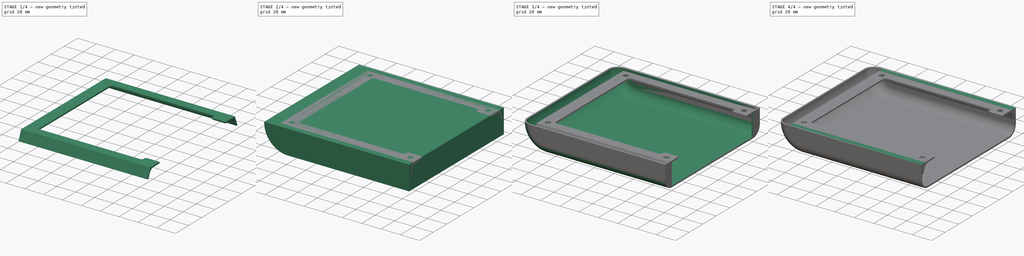
[diagram: build sequence overview — one tinted view per stage of 4, left to right]
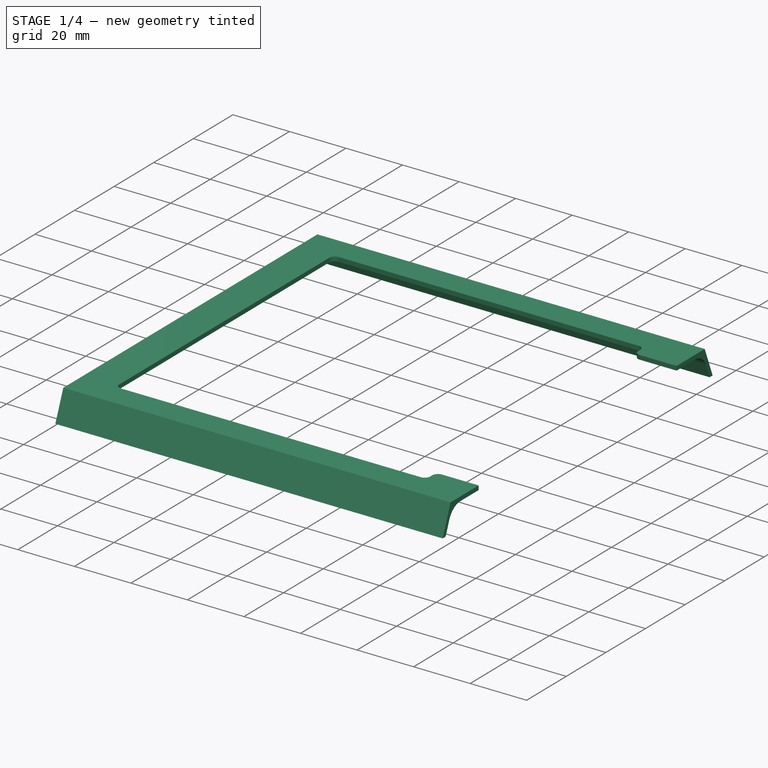
[diagram: stage 1 of 4 — iso view after this stage's code; geometry added in this stage tinted green]
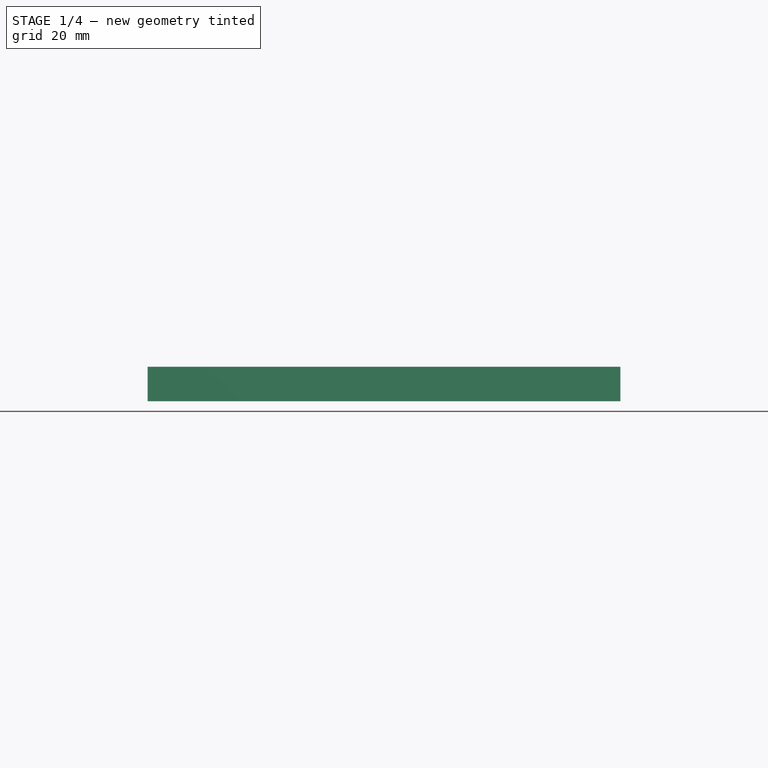
[diagram: stage 1 of 4 — front view after this stage's code; geometry added in this stage tinted green]
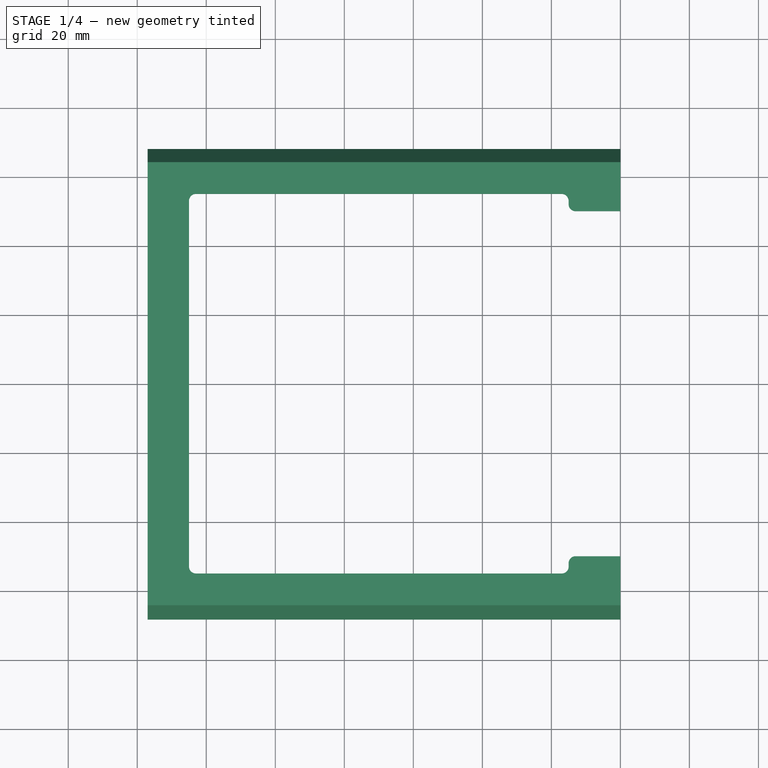
[diagram: stage 1 of 4 — top view after this stage's code; geometry added in this stage tinted green]
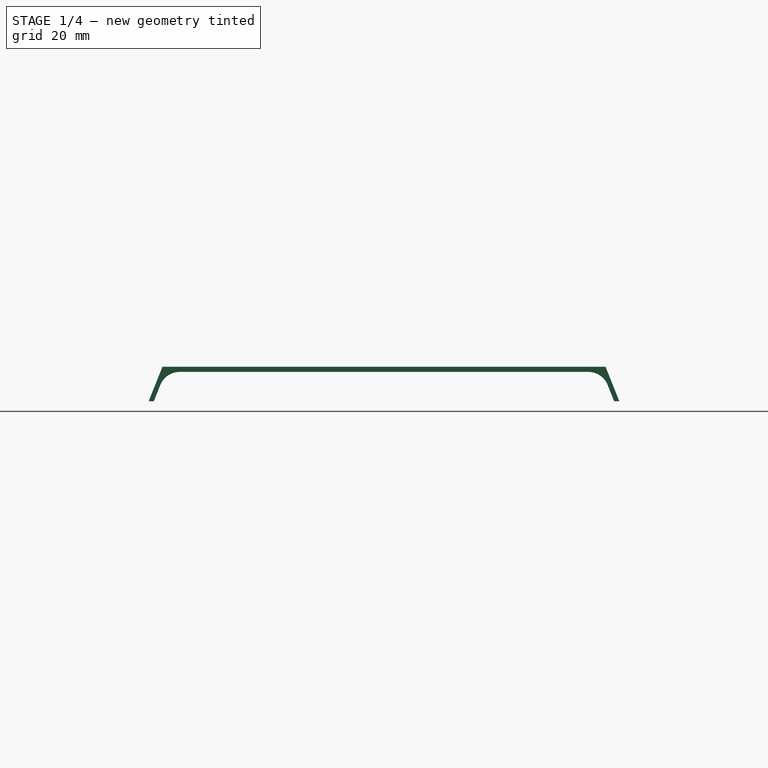
[diagram: stage 1 of 4 — right view after this stage's code; geometry added in this stage tinted green]
FCSTD DOCUMENT  (FreeCAD 1.1R)
Label: cover-mount
License: All rights reserved
LicenseURL: https://en.wikipedia.org/wiki/All_rights_reserved
objects: Sketcher::SketchObject×8, PartDesign::Pocket×5, PartDesign::Pad×3, App::Point×2, PartDesign::Body×2, PartDesign::Fillet×1, PartDesign::Thickness×1
note: 48 computed .brp shape members not serialized (recipe doc carries the construction recipe); baked Part::Feature solids carry a one-line shape summary decoded from their .brp

FEATURE [PartDesign::Body] Body  label="case"
  AllowCompound = false
  Group = -> [Sketch,Pad,Fillet,Thickness,Sketch001,Pocket,Sketch002,Pocket001,Sketch004,Pad001]
  Origin = -> Origin
  Tip = -> Pad001
FEATURE [App::Point] Origin003
  Role = Origin
FEATURE [Sketcher::SketchObject] Sketch005
  ArcFitTolerance = 1e-06
  AttachmentSupport = -> [Origin002]
  ExternalTypes = [0]
  FullyConstrained = true
  MakeInternals = false
  MapMode = 5
  Placement = pos=(0,0,0) rot=(0.57735,0.57735,0.57735;2.0944rad)
  sketch-geometry (18):
    g0: LineSegment StartX=-68.2 StartY=15 StartZ=0 EndX=-64.2 EndY=25 EndZ=0
    g1: LineSegment StartX=-64.2 StartY=25 StartZ=0 EndX=-54.2 EndY=25 EndZ=0
    g2: LineSegment [constr] StartX=-54.2 StartY=25 StartZ=0 EndX=-54.2 EndY=23.5 EndZ=0
    g3: LineSegment StartX=-54.2 StartY=23.5 StartZ=0 EndX=-59.2 EndY=23.5 EndZ=0
    g4: LineSegment StartX=-68.2 StartY=15 StartZ=0 EndX=-66.7 EndY=15 EndZ=0
    g5: LineSegment StartX=-66.7 StartY=15 StartZ=0 EndX=-64.8227 EndY=19.6932 EndZ=0
    g6: ArcOfCircle CenterX=-59.2 CenterY=17.4442 CenterZ=0 NormalX=0 NormalY=0 NormalZ=1 AngleXU=0 Radius=6.05584 StartAngle=1.5708 EndAngle=2.76109
    g7: GeomPoint [constr] X=-63.3 Y=23.5 Z=0
    g8: LineSegment StartX=54.2 StartY=25 StartZ=0 EndX=64.2 EndY=25 EndZ=0
    g9: LineSegment StartX=64.2 StartY=25 StartZ=0 EndX=68.2 EndY=15 EndZ=0
    g10: LineSegment StartX=68.2 StartY=15 StartZ=0 EndX=66.7 EndY=15 EndZ=0
    g11: LineSegment StartX=66.7 StartY=15 StartZ=0 EndX=64.8227 EndY=19.6932 EndZ=0
    g12: LineSegment StartX=59.2 StartY=23.5 StartZ=0 EndX=54.2 EndY=23.5 EndZ=0
    g13: LineSegment [constr] StartX=54.2 StartY=23.5 StartZ=0 EndX=54.2 EndY=25 EndZ=0
    g14: ArcOfCircle CenterX=59.2 CenterY=17.4442 CenterZ=0 NormalX=0 NormalY=0 NormalZ=1 AngleXU=0 Radius=6.05584 StartAngle=0.380506 EndAngle=1.5708
    g15: GeomPoint [constr] X=63.3 Y=23.5 Z=0
    g16: LineSegment StartX=-54.2 StartY=25 StartZ=0 EndX=54.2 EndY=25 EndZ=0
    g17: LineSegment StartX=-54.2 StartY=23.5 StartZ=0 EndX=54.2 EndY=23.5 EndZ=0
  constraints (41):
    c: Coincident(g0,g1)
    c: Horizontal(g1)
    c: Coincident(g1,g2)
    c: Vertical(g2)
    c: Coincident(g2,g3)
    c: Horizontal(g3)
    c: DistanceX(g0,g0) = 4
    c: DistanceY(g0,g0) = 10
    c: Distance(g0,g-2) = 64.2
    c: Distance(g2,g2) = 1.5
    c: Distance(g1,g-1) = 25
    c: Coincident(g4,g0)
    c: Horizontal(g4)
    c: Coincident(g4,g5)
    c: Parallel(g5,g0)
    c: Distance(g4,g4) = 1.5
    c: DistanceX(g1,g1) = 10
    c: PointOnObject(g7,g3)
    c: PointOnObject(g7,g5)
    c: Tangent(g3,g6) = -1.5708
    c: Tangent(g5,g6) = 1.5708
    c: Distance(g3,g3) = 5
    c: Coincident(g8,g9)
    c: Coincident(g9,g10)
    c: Coincident(g10,g11)
    c: Coincident(g12,g13)
    c: Coincident(g13,g8)
    c: Symmetric(g8,g1,g-2)
    c: Symmetric(g12,g2,g-2)
    c: Symmetric(g8,g0,g-2)
    c: Symmetric(g10,g4,g-2)
    c: PointOnObject(g15,g11)
    c: Tangent(g11,g14) = -1.5708
    c: Tangent(g12,g14) = -1.5708
    c: Symmetric(g15,g7,g-2)
    c: Symmetric(g14,g6,g-2)
    c: Symmetric(g9,g0,g-2)
    c: Coincident(g16,g1)
    c: Coincident(g16,g8)
    c: Coincident(g17,g2)
    c: Coincident(g17,g12)
FEATURE [PartDesign::Pad] Pad002
  Direction = (1,0,0)
  Length = 137
  Length2 = 10
  Profile = -> Sketch005
  ReferenceAxis = -> Sketch005 [N_Axis]
  Refine = true
  Reversed = true
  SideType = 0
  Suppressed = false
  Type = 0
  Type2 = 0
FEATURE [Sketcher::SketchObject] Sketch006
  ArcFitTolerance = 1e-06
  AttachmentSupport = -> [Origin002]
  ExternalTypes = [0]
  FullyConstrained = true
  MakeInternals = false
  MapMode = 5
  sketch-geometry (22):
    g0: LineSegment StartX=-17 StartY=55 StartZ=0 EndX=-123 EndY=55 EndZ=0
    g1: LineSegment StartX=-123 StartY=-55 StartZ=0 EndX=-17 EndY=-55 EndZ=0
    g2: LineSegment StartX=0 StartY=-50 StartZ=0 EndX=0 EndY=50 EndZ=0
    g3: GeomPoint [constr] X=0 Y=55 Z=0
    g4: GeomPoint [constr] X=0 Y=-55 Z=0
    g5: LineSegment StartX=-15 StartY=-53 StartZ=0 EndX=-15 EndY=-52 EndZ=0
    g6: LineSegment StartX=-13 StartY=-50 StartZ=0 EndX=0 EndY=-50 EndZ=0
    g7: LineSegment StartX=-15 StartY=53 StartZ=0 EndX=-15 EndY=52 EndZ=0
    g8: LineSegment StartX=-13 StartY=50 StartZ=0 EndX=0 EndY=50 EndZ=0
    g9: LineSegment StartX=-125 StartY=53 StartZ=0 EndX=-125 EndY=-53 EndZ=0
    g10: ArcOfCircle CenterX=-123 CenterY=-53 CenterZ=0 NormalX=0 NormalY=0 NormalZ=1 AngleXU=0 Radius=2 StartAngle=3.14159 EndAngle=4.71239
    g11: GeomPoint [constr] X=-125 Y=-55 Z=0
    g12: ArcOfCircle CenterX=-123 CenterY=53 CenterZ=0 NormalX=0 NormalY=0 NormalZ=1 AngleXU=0 Radius=2 StartAngle=1.5708 EndAngle=3.14159
    g13: GeomPoint [constr] X=-125 Y=55 Z=0
    g14: ArcOfCircle CenterX=-17 CenterY=53 CenterZ=0 NormalX=0 NormalY=0 NormalZ=1 AngleXU=0 Radius=2 StartAngle=0 EndAngle=1.5708
    g15: GeomPoint [constr] X=-15 Y=55 Z=0
    g16: ArcOfCircle CenterX=-13 CenterY=52 CenterZ=0 NormalX=0 NormalY=0 NormalZ=1 AngleXU=0 Radius=2 StartAngle=3.14159 EndAngle=4.71239
    g17: GeomPoint [constr] X=-15 Y=50 Z=0
    g18: ArcOfCircle CenterX=-17 CenterY=-53 CenterZ=0 NormalX=0 NormalY=0 NormalZ=1 AngleXU=0 Radius=2 StartAngle=4.71239 EndAngle=6.28319
    g19: GeomPoint [constr] X=-15 Y=-55 Z=0
    g20: ArcOfCircle CenterX=-13 CenterY=-52 CenterZ=0 NormalX=0 NormalY=0 NormalZ=1 AngleXU=0 Radius=2 StartAngle=1.5708 EndAngle=3.14159
    g21: GeomPoint [constr] X=-15 Y=-50 Z=0
  constraints (48):
    c: Horizontal(g0)
    c: PointOnObject(g3,g-2)
    c: DistanceY(g4,g3) = 110
    c: PointOnObject(g3,g0)
    c: PointOnObject(g3,g2)
    c: PointOnObject(g4,g1)
    c: PointOnObject(g4,g2)
    c: Coincident(g6,g2)
    c: Coincident(g8,g2)
    c: Symmetric(g17,g21,g-1)
    c: Symmetric(g2,g2,g-1)
    c: Perpendicular(g2,g8)
    c: Perpendicular(g7,g8)
    c: Symmetric(g19,g15,g-1)
    c: Symmetric(g13,g11,g-1)
    c: Distance(g11,g-2) = 125
    c: Distance(g21,g6) = 15
    c: Distance(g19,g21) = 5
    c: PointOnObject(g11,g1)
    c: PointOnObject(g11,g9)
    c: Tangent(g1,g10) = -1.5708
    c: Tangent(g9,g10) = -1.5708
    c: Distance(g10,g9) = 2
    c: PointOnObject(g13,g0)
    c: PointOnObject(g13,g9)
    c: Tangent(g0,g12) = -1.5708
    c: Tangent(g9,g12) = -1.5708
    c: PointOnObject(g15,g0)
    c: PointOnObject(g15,g7)
    c: Tangent(g0,g14) = -1.5708
    c: Tangent(g7,g14) = 1.5708
    c: PointOnObject(g17,g7)
    c: PointOnObject(g17,g8)
    c: Tangent(g7,g16) = -1.5708
    c: Tangent(g8,g16) = -1.5708
    c: Distance(g16,g8) = 2
    c: Distance(g15,g7) = 2
    c: DistanceX(g13,g0) = 2
    c: PointOnObject(g19,g1)
    c: PointOnObject(g19,g5)
    c: Tangent(g1,g18) = -1.5708
    c: Tangent(g5,g18) = -1.5708
    c: PointOnObject(g21,g5)
    c: PointOnObject(g21,g6)
    c: Tangent(g5,g20) = 1.5708
    c: Tangent(g6,g20) = 1.5708
    c: Distance(g20,g6) = 2
    c: Distance(g19,g5) = 2
FEATURE [PartDesign::Pocket] Pocket002
  BaseFeature = -> Pad002
  Direction = (0,0,-1)
  Length = 31
  Length2 = 5
  Profile = -> Sketch006
  ReferenceAxis = -> Sketch006 [N_Axis]
  Refine = true
  Reversed = true
  SideType = 0
  Suppressed = false
  Type = 0
  Type2 = 0
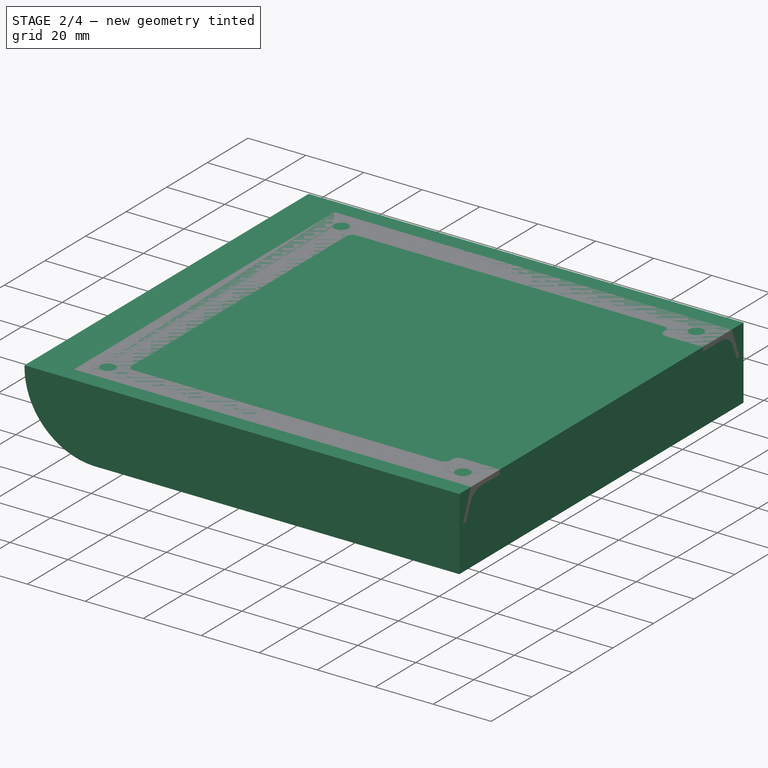
[diagram: stage 2 of 4 — iso view after this stage's code; geometry added in this stage tinted green]
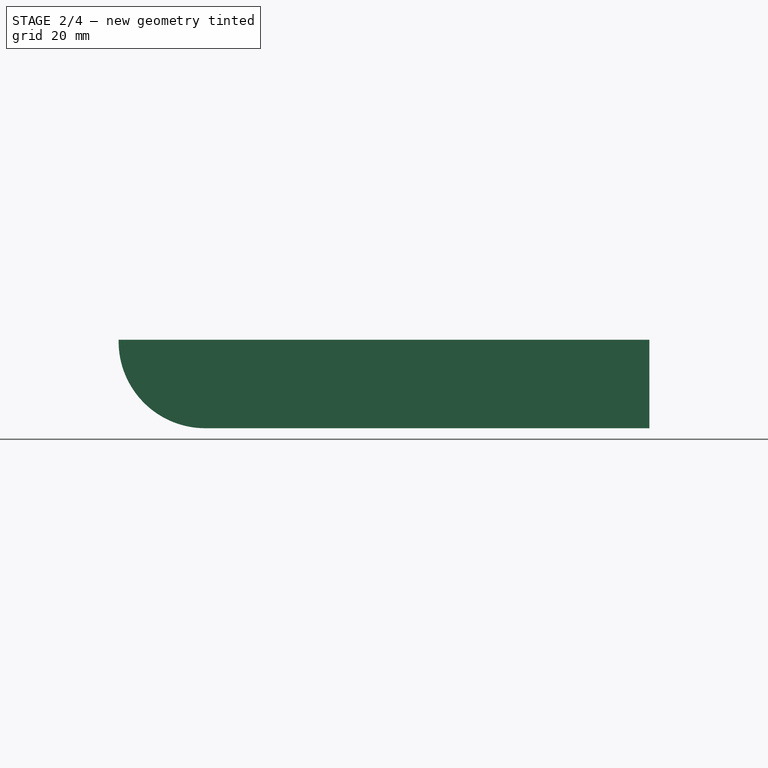
[diagram: stage 2 of 4 — front view after this stage's code; geometry added in this stage tinted green]
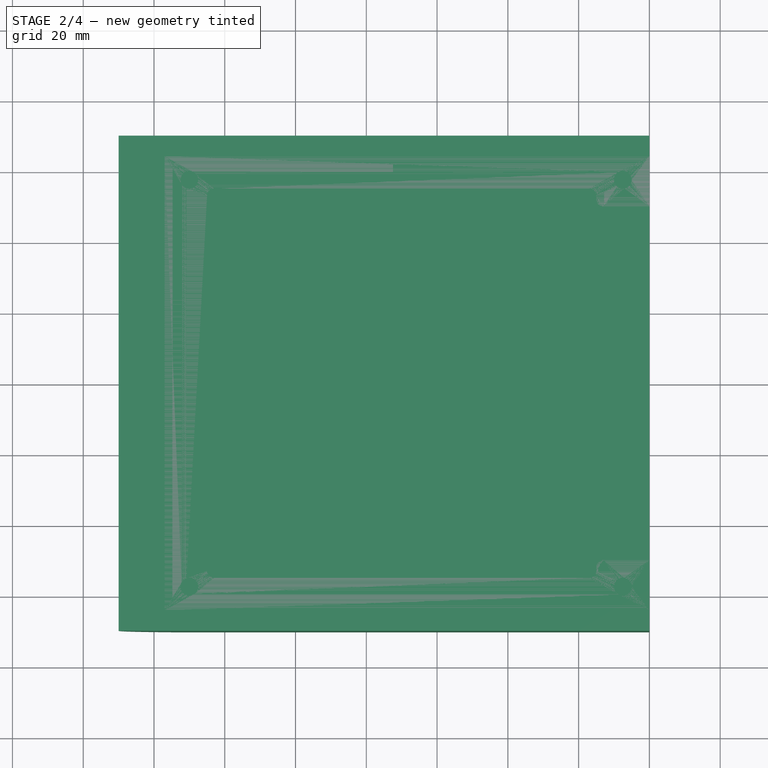
[diagram: stage 2 of 4 — top view after this stage's code; geometry added in this stage tinted green]
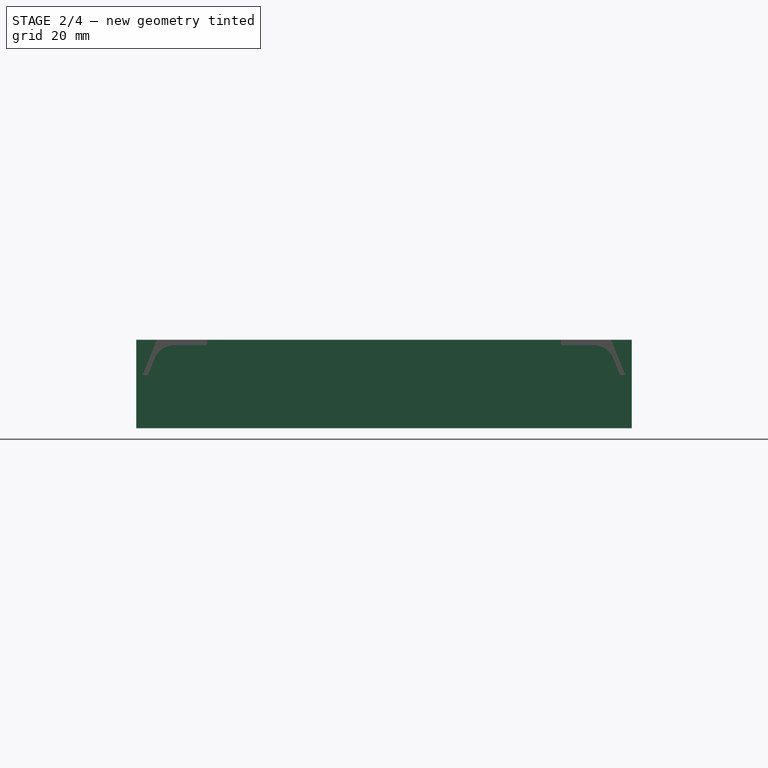
[diagram: stage 2 of 4 — right view after this stage's code; geometry added in this stage tinted green]
FEATURE [App::Point] Origin001
  Role = Origin
FEATURE [Sketcher::SketchObject] Sketch
  ArcFitTolerance = 1e-06
  AttachmentSupport = -> [Origin]
  ExternalTypes = [0]
  FullyConstrained = true
  MakeInternals = false
  MapMode = 5
  Placement = pos=(0,0,0) rot=(1,0,0;1.5708rad)
  sketch-geometry (6):
    g0: LineSegment StartX=0 StartY=0 StartZ=0 EndX=0 EndY=25 EndZ=0
    g1: LineSegment StartX=0 StartY=25 StartZ=0 EndX=-150 EndY=25 EndZ=0
    g2: LineSegment StartX=-150 StartY=25 StartZ=0 EndX=-150 EndY=24.5 EndZ=0
    g3: LineSegment StartX=-125.5 StartY=0 StartZ=0 EndX=0 EndY=0 EndZ=0
    g4: ArcOfCircle CenterX=-125.5 CenterY=24.5 CenterZ=0 NormalX=0 NormalY=0 NormalZ=1 AngleXU=0 Radius=24.5 StartAngle=3.14159 EndAngle=4.71239
    g5: GeomPoint [constr] X=-150 Y=0 Z=0
  constraints (15):
    c: Coincident(g0,g1)
    c: Coincident(g1,g2)
    c: Coincident(g3,g0)
    c: Vertical(g0)
    c: Vertical(g2)
    c: Horizontal(g1)
    c: Horizontal(g3)
    c: Coincident(g0,g-1)
    c: Distance(g0,g0) = 25
    c: DistanceX(g1,g1) = 150
    c: PointOnObject(g5,g2)
    c: PointOnObject(g5,g3)
    c: Tangent(g2,g4) = -1.5708
    c: Tangent(g3,g4) = -1.5708
    c: Distance(g4,g3) = 24.5
FEATURE [PartDesign::Pad] Pad
  Direction = (0,-1,0)
  Length = 140
  Length2 = 10
  Profile = -> Sketch
  ReferenceAxis = -> Sketch [N_Axis]
  Refine = true
  SideType = 2
  Suppressed = false
  Type = 0
  Type2 = 0
FEATURE [Sketcher::SketchObject] Sketch007
  ArcFitTolerance = 1e-06
  AttachmentSupport = -> [Origin002]
  ExternalTypes = [0]
  FullyConstrained = true
  MakeInternals = false
  MapMode = 5
  sketch-geometry (4):
    g0: Circle CenterX=-7.5 CenterY=57.5 CenterZ=0 NormalX=0 NormalY=0 NormalZ=1 AngleXU=0 Radius=2.5
    g1: Circle CenterX=-130 CenterY=57.5 CenterZ=0 NormalX=0 NormalY=0 NormalZ=1 AngleXU=0 Radius=2.5
    g2: Circle CenterX=-7.5 CenterY=-57.5 CenterZ=0 NormalX=0 NormalY=0 NormalZ=1 AngleXU=0 Radius=2.5
    g3: Circle CenterX=-130 CenterY=-57.5 CenterZ=0 NormalX=0 NormalY=0 NormalZ=1 AngleXU=0 Radius=2.5
  constraints (10):
    c: Equal(g0,g1)
    c: Equal(g1,g3)
    c: Equal(g3,g2)
    c: Horizontal(g1,g0)
    c: Symmetric(g3,g1,g-1)
    c: Symmetric(g2,g0,g-1)
    c: Distance(g0,g-1) = 57.5
    c: Diameter(g0) = 5
    c: Distance(g1,g-2) = 130
    c: Distance(g2,g-2) = 7.5
FEATURE [PartDesign::Pocket] Pocket003
  BaseFeature = -> Pocket002
  Direction = (0,0,-1)
  Length = 30
  Length2 = 5
  Profile = -> Sketch007
  ReferenceAxis = -> Sketch007 [N_Axis]
  Refine = true
  Reversed = true
  SideType = 0
  Suppressed = false
  Type = 0
  Type2 = 0
FEATURE [Sketcher::SketchObject] Sketch008
  ArcFitTolerance = 1e-06
  AttachmentSupport = -> [Origin002]
  ExternalTypes = [0]
  FullyConstrained = false
  MakeInternals = false
  MapMode = 5
  Placement = pos=(0,0,0) rot=(1,0,0;1.5708rad)
  sketch-geometry (4):
    g0: LineSegment StartX=-137.213 StartY=23.6383 StartZ=0 EndX=-139.775 EndY=10.1899 EndZ=0
    g1: LineSegment StartX=-139.775 StartY=10.1899 StartZ=0 EndX=-126.848 EndY=14.6953 EndZ=0
    g2: LineSegment StartX=-126.848 StartY=14.6953 StartZ=0 EndX=-137.213 EndY=23.6383 EndZ=0
    g3: Circle [constr] CenterX=-134.612 CenterY=16.1745 CenterZ=0 NormalX=0 NormalY=0 NormalZ=1 AngleXU=0 Radius=7.90405
  constraints (8):
    c: Coincident(g0,g1)
    c: Coincident(g1,g2)
    c: Coincident(g2,g0)
    c: Equal(g0,g1)
    c: Equal(g0,g2)
    c: PointOnObject(g0,g3)
    c: PointOnObject(g1,g3)
    c: PointOnObject(g2,g3)
FEATURE [PartDesign::Pocket] Pocket004
  BaseFeature = -> Pocket003
  Direction = (0,1,0)
  Length = 200
  Length2 = 5
  Profile = -> Sketch008
  ReferenceAxis = -> Sketch008 [N_Axis]
  Refine = true
  SideType = 2
  Suppressed = false
  Type = 0
  Type2 = 0
FEATURE [PartDesign::Body] Body001  label="mount"
  AllowCompound = false
  Group = -> [Sketch005,Pad002,Sketch006,Pocket002,Sketch007,Pocket003,Sketch008,Pocket004]
  Origin = -> Origin002
  Tip = -> Pocket004
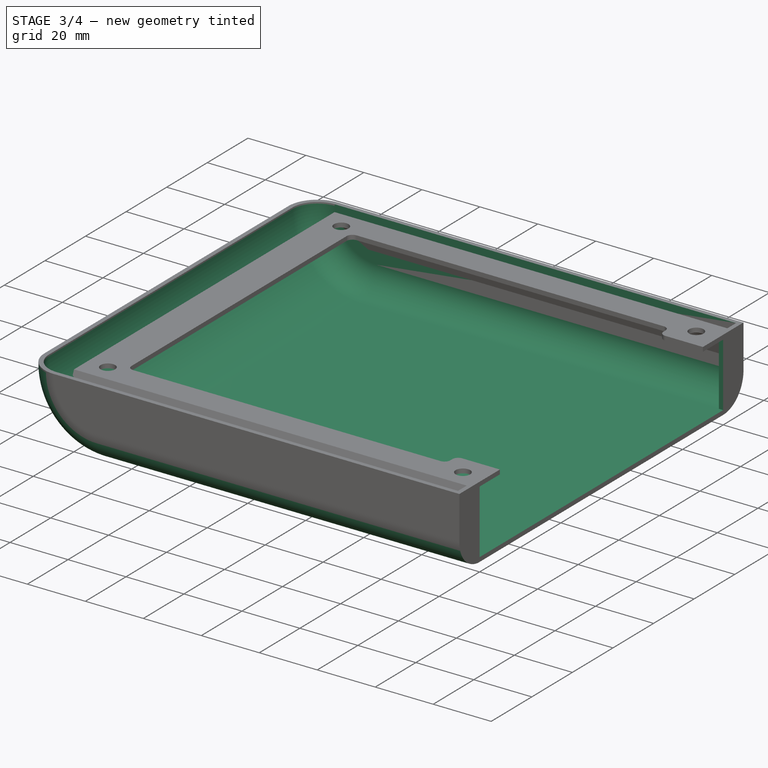
[diagram: stage 3 of 4 — iso view after this stage's code; geometry added in this stage tinted green]
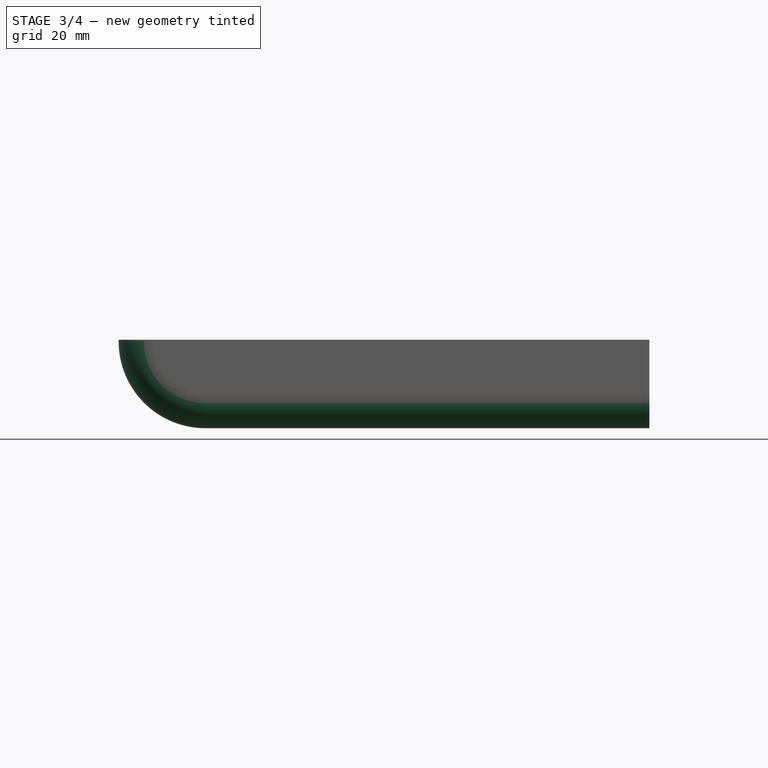
[diagram: stage 3 of 4 — front view after this stage's code; geometry added in this stage tinted green]
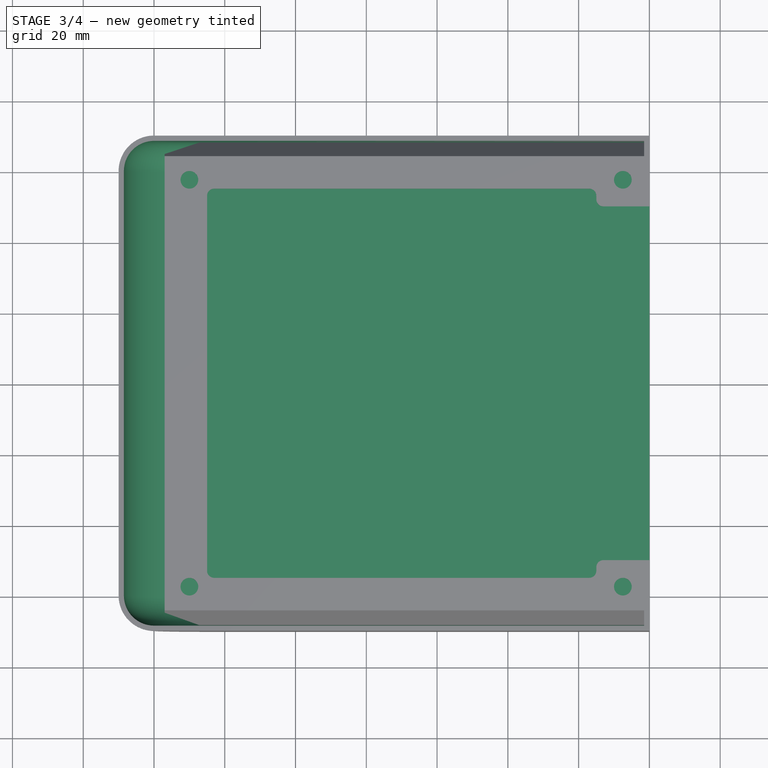
[diagram: stage 3 of 4 — top view after this stage's code; geometry added in this stage tinted green]
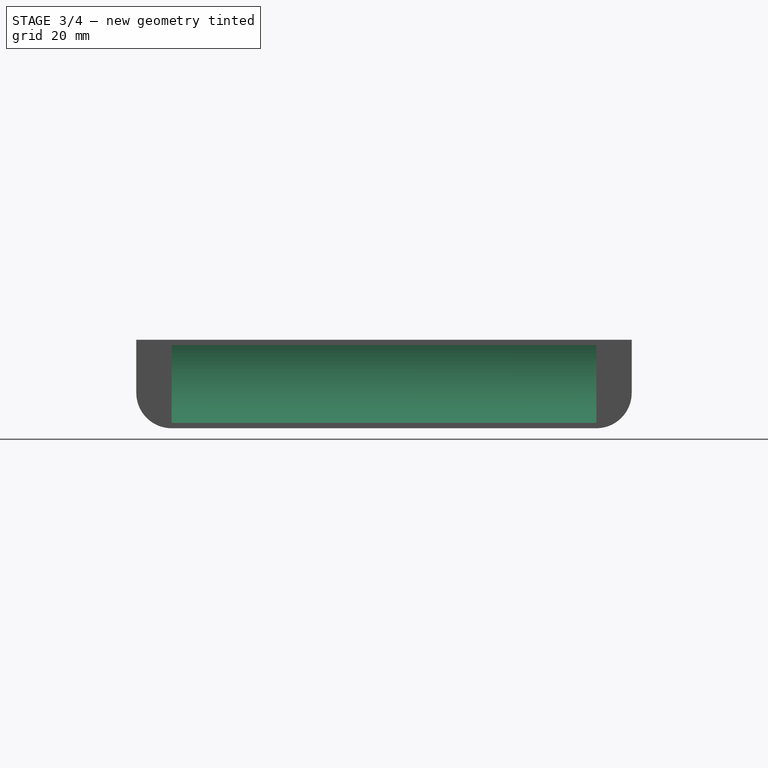
[diagram: stage 3 of 4 — right view after this stage's code; geometry added in this stage tinted green]
FEATURE [PartDesign::Fillet] Fillet
  Base = -> Pad [Edge15,Edge14]
  BaseFeature = -> Pad
  Radius = 10
  Refine = true
  SupportTransform = false
  Suppressed = false
  UseAllEdges = false
FEATURE [PartDesign::Thickness] Thickness
  Base = -> Fillet [Face7]
  BaseFeature = -> Fillet
  Intersection = false
  Join = 0
  Mode = 0
  Refine = true
  Reversed = true
  SupportTransform = false
  Suppressed = false
  Value = 1.5
FEATURE [Sketcher::SketchObject] Sketch001
  ArcFitTolerance = 1e-06
  AttachmentSupport = -> [Origin]
  ExternalTypes = [0]
  FullyConstrained = true
  MakeInternals = false
  MapMode = 5
  Placement = pos=(0,0,0) rot=(0.57735,0.57735,0.57735;2.0944rad)
  sketch-geometry (4):
    g0: LineSegment StartX=-60 StartY=26.5 StartZ=0 EndX=-60 EndY=1.5 EndZ=0
    g1: LineSegment StartX=-60 StartY=1.5 StartZ=0 EndX=60 EndY=1.5 EndZ=0
    g2: LineSegment StartX=60 StartY=1.5 StartZ=0 EndX=60 EndY=26.5 EndZ=0
    g3: LineSegment StartX=60 StartY=26.5 StartZ=0 EndX=-60 EndY=26.5 EndZ=0
  constraints (11):
    c: Coincident(g0,g1)
    c: Coincident(g1,g2)
    c: Coincident(g2,g3)
    c: Coincident(g3,g0)
    c: Vertical(g0)
    c: Vertical(g2)
    c: Horizontal(g3)
    c: Distance(g-1,g1) = 1.5
    c: Symmetric(g0,g1,g-2)
    c: Distance(g1,g1) = 120
    c: Distance(g0,g0) = 25
FEATURE [PartDesign::Pocket] Pocket
  BaseFeature = -> Thickness
  Direction = (-1,0,0)
  Length = 5
  Length2 = 5
  Profile = -> Sketch001
  ReferenceAxis = -> Sketch001 [N_Axis]
  Refine = true
  SideType = 0
  Suppressed = false
  Type = 0
  Type2 = 0
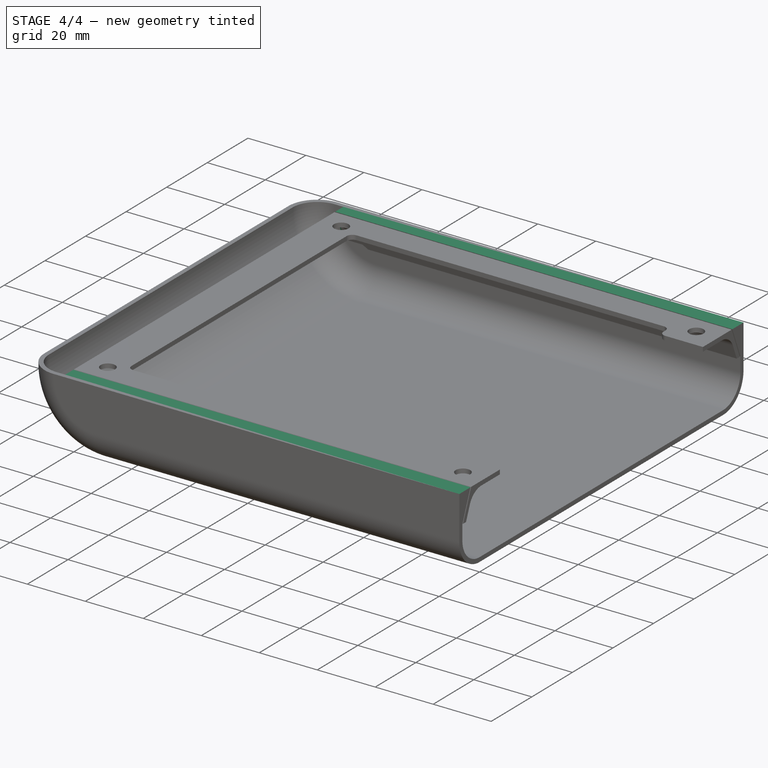
[diagram: stage 4 of 4 — iso view after this stage's code; geometry added in this stage tinted green]
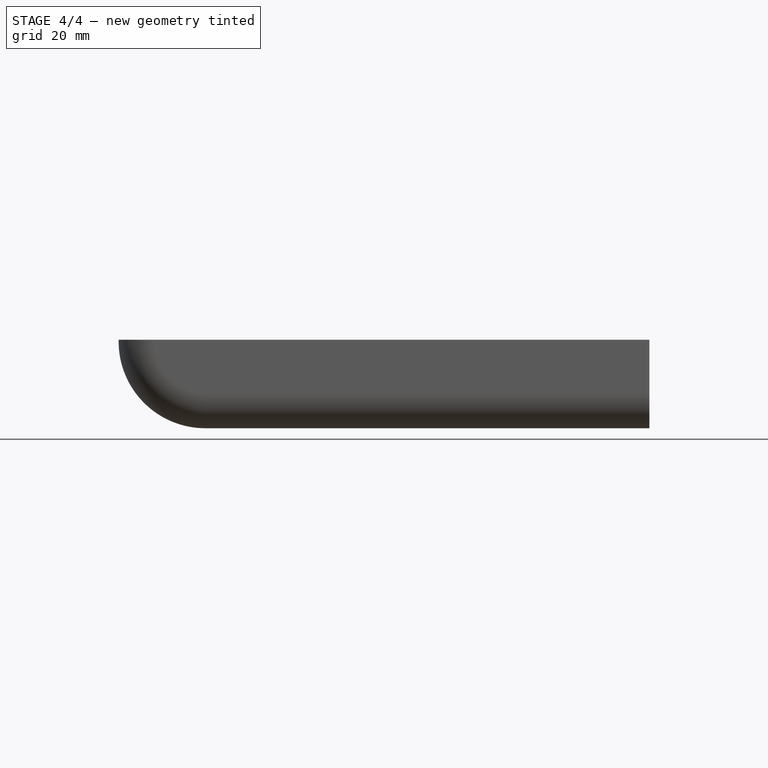
[diagram: stage 4 of 4 — front view after this stage's code; geometry added in this stage tinted green]
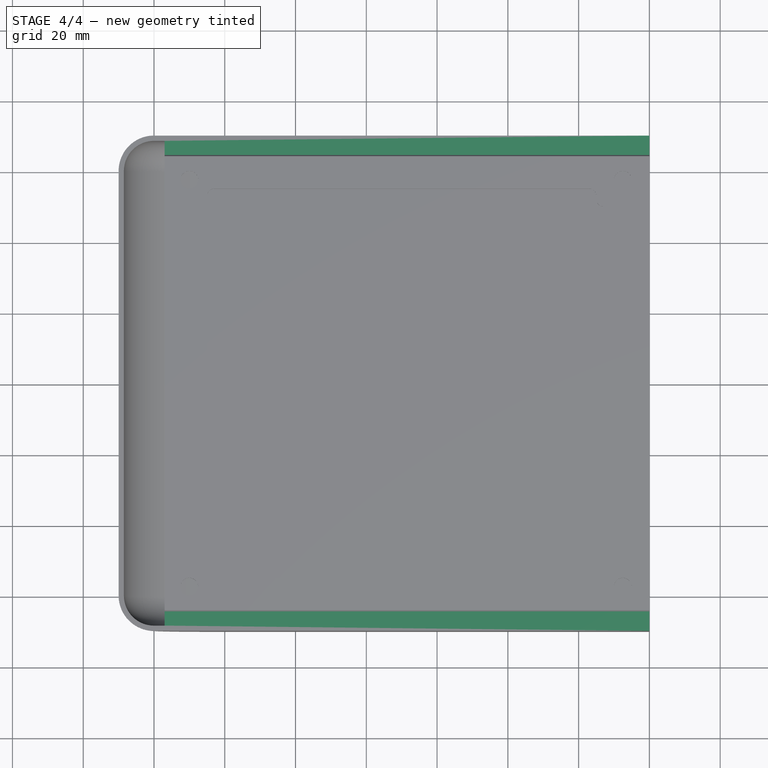
[diagram: stage 4 of 4 — top view after this stage's code; geometry added in this stage tinted green]
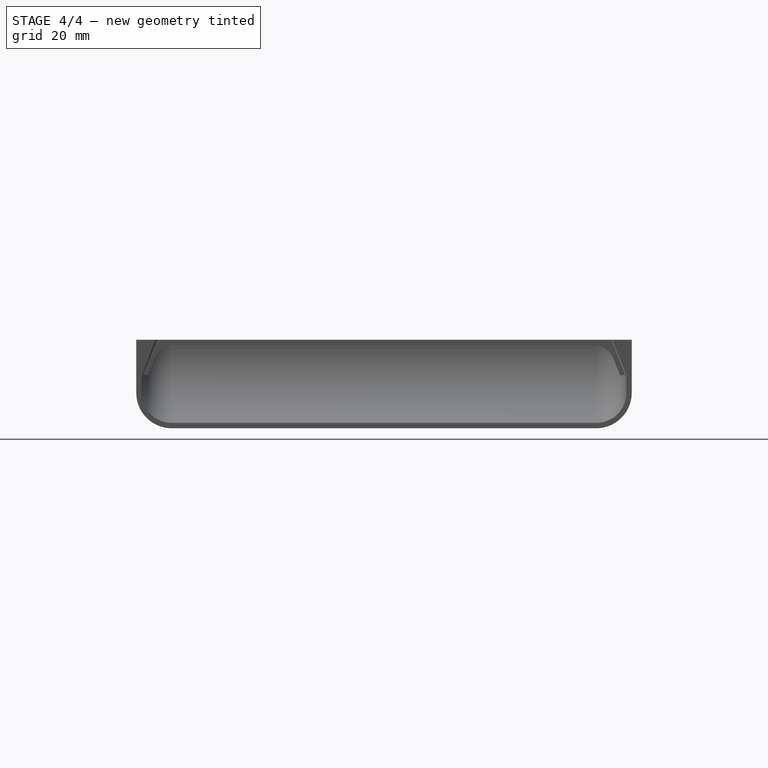
[diagram: stage 4 of 4 — right view after this stage's code; geometry added in this stage tinted green]
FEATURE [Sketcher::SketchObject] Sketch002
  ArcFitTolerance = 1e-06
  AttachmentSupport = -> [Origin]
  ExternalTypes = [0]
  FullyConstrained = true
  MakeInternals = false
  MapMode = 5
  Placement = pos=(0,0,0) rot=(0.57735,0.57735,0.57735;2.0944rad)
  sketch-geometry (8):
    g0: LineSegment StartX=-68.5 StartY=26.5 StartZ=0 EndX=-68.5 EndY=10 EndZ=0
    g1: LineSegment StartX=-60 StartY=1.5 StartZ=0 EndX=60 EndY=1.5 EndZ=0
    g2: LineSegment StartX=68.5 StartY=10 StartZ=0 EndX=68.5 EndY=26.5 EndZ=0
    g3: LineSegment StartX=68.5 StartY=26.5 StartZ=0 EndX=-68.5 EndY=26.5 EndZ=0
    g4: ArcOfCircle CenterX=60 CenterY=10 CenterZ=0 NormalX=0 NormalY=0 NormalZ=1 AngleXU=0 Radius=8.5 StartAngle=4.71239 EndAngle=6.28319
    g5: GeomPoint [constr] X=68.5 Y=1.5 Z=0
    g6: ArcOfCircle CenterX=-60 CenterY=10 CenterZ=0 NormalX=0 NormalY=0 NormalZ=1 AngleXU=0 Radius=8.5 StartAngle=3.14159 EndAngle=4.71239
    g7: GeomPoint [constr] X=-68.5 Y=1.5 Z=0
  constraints (18):
    c: Coincident(g2,g3)
    c: Coincident(g3,g0)
    c: Vertical(g0)
    c: Vertical(g2)
    c: Horizontal(g3)
    c: DistanceX(g3,g3) = 137
    c: Distance(g5,g2) = 25
    c: Symmetric(g5,g7,g-2)
    c: Distance(g-1,g1) = 1.5
    c: PointOnObject(g5,g1)
    c: PointOnObject(g5,g2)
    c: Tangent(g1,g4) = -1.5708
    c: Tangent(g2,g4) = -1.5708
    c: PointOnObject(g7,g0)
    c: Tangent(g0,g6) = -1.5708
    c: Tangent(g1,g6) = -1.5708
    c: Distance(g0,g7) = 8.5
    c: Symmetric(g1,g1,g-2)
FEATURE [PartDesign::Pocket] Pocket001
  BaseFeature = -> Pocket
  Direction = (-1,0,0)
  Length = 5
  Length2 = 5
  Profile = -> Sketch002
  ReferenceAxis = -> Sketch002 [N_Axis]
  Refine = true
  SideType = 0
  Suppressed = false
  Type = 0
  Type2 = 0
FEATURE [Sketcher::SketchObject] Sketch004
  ArcFitTolerance = 1e-06
  AttachmentSupport = -> [Origin]
  ExternalTypes = [0]
  FullyConstrained = true
  MakeInternals = false
  MapMode = 5
  Placement = pos=(0,0,0) rot=(0.57735,0.57735,0.57735;2.0944rad)
  sketch-geometry (6):
    g0: LineSegment StartX=-68.5 StartY=25 StartZ=0 EndX=-64.5 EndY=25 EndZ=0
    g1: LineSegment StartX=-64.5 StartY=25 StartZ=0 EndX=-68.5 EndY=15 EndZ=0
    g2: LineSegment StartX=-68.5 StartY=15 StartZ=0 EndX=-68.5 EndY=25 EndZ=0
    g3: LineSegment StartX=64.5 StartY=25 StartZ=0 EndX=68.5 EndY=25 EndZ=0
    g4: LineSegment StartX=68.5 StartY=25 StartZ=0 EndX=68.5 EndY=15 EndZ=0
    g5: LineSegment StartX=68.5 StartY=15 StartZ=0 EndX=64.5 EndY=25 EndZ=0
  constraints (15):
    c: Coincident(g0,g1)
    c: Coincident(g1,g2)
    c: Coincident(g2,g0)
    c: Coincident(g3,g4)
    c: Coincident(g4,g5)
    c: Coincident(g5,g3)
    c: Distance(g0,g-2) = 68.5
    c: Symmetric(g0,g3,g-2)
    c: Symmetric(g0,g3,g-2)
    c: Horizontal(g0,g0)
    c: Distance(g0,g-1) = 25
    c: Symmetric(g4,g1,g-2)
    c: Perpendicular(g0,g2)
    c: Distance(g2,g2) = 10
    c: DistanceX(g3,g3) = 4
FEATURE [PartDesign::Pad] Pad001
  BaseFeature = -> Pocket001
  Direction = (1,0,0)
  Length = 137
  Length2 = 10
  Profile = -> Sketch004
  ReferenceAxis = -> Sketch004 [N_Axis]
  Refine = true
  Reversed = true
  SideType = 0
  Suppressed = false
  Type = 0
  Type2 = 0
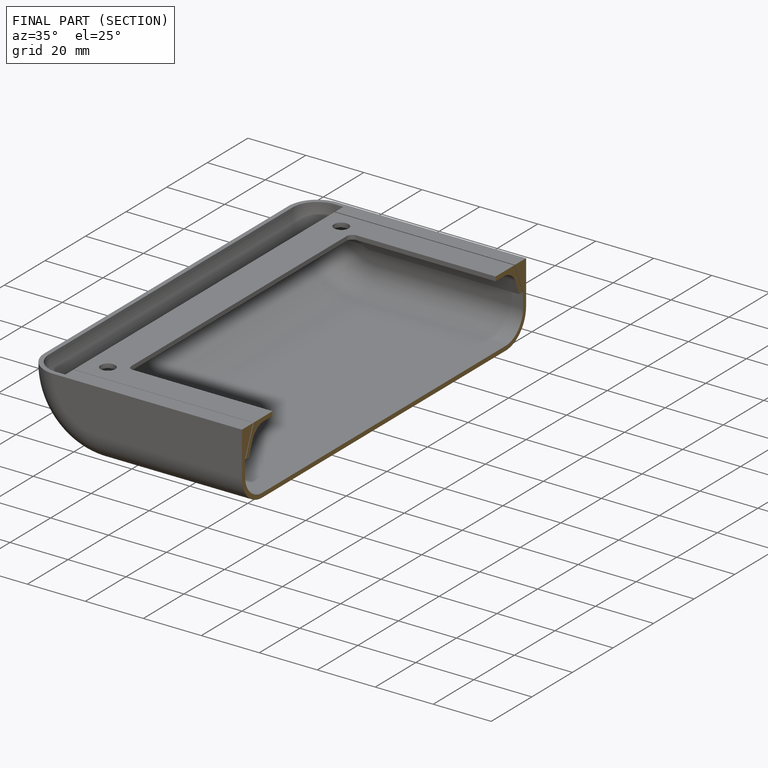
[diagram: finished part — half-section view (interior)]
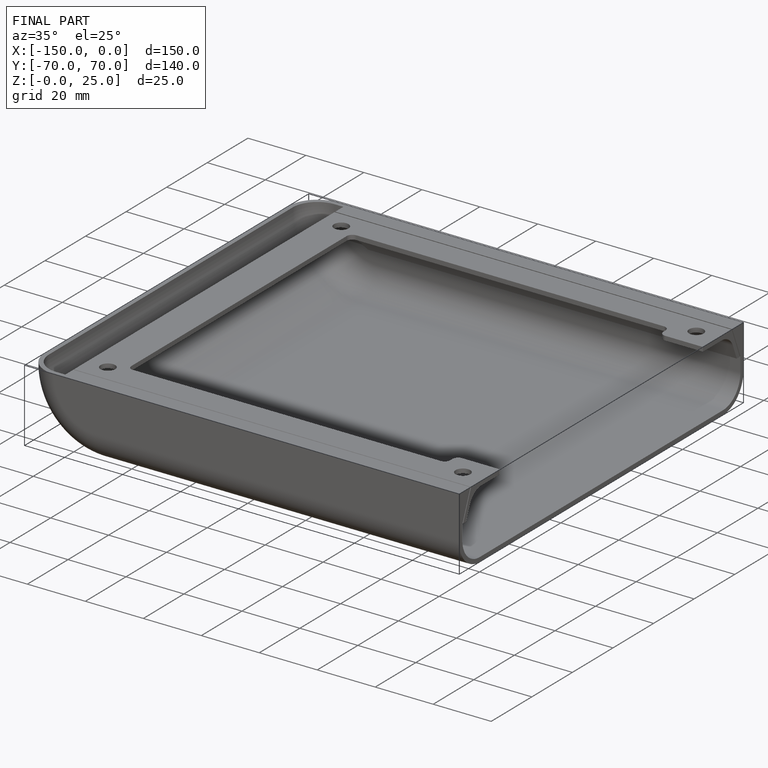
[diagram: finished part — iso view with bounding-box wireframe]
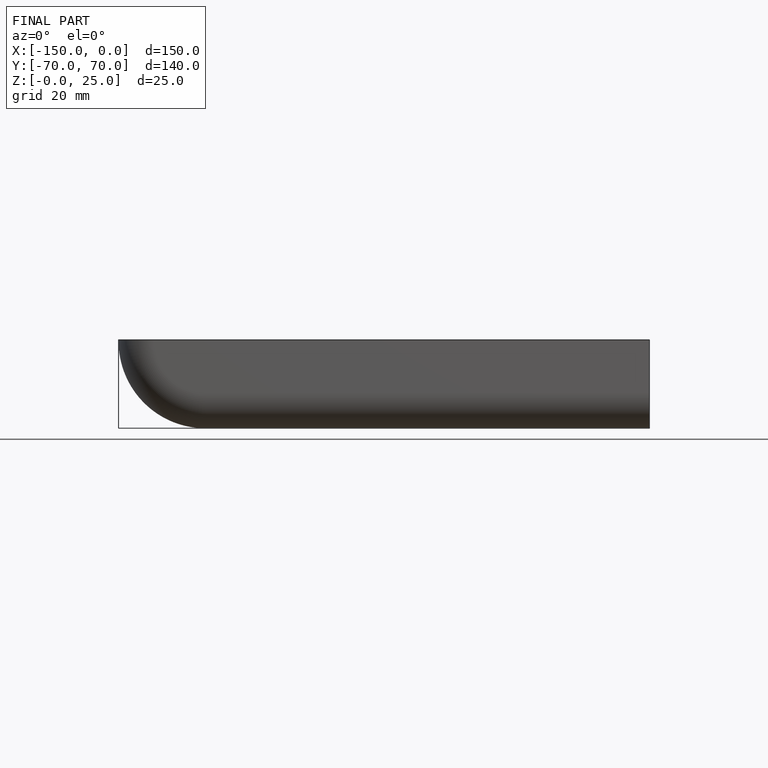
[diagram: finished part — front view with bounding-box wireframe]
